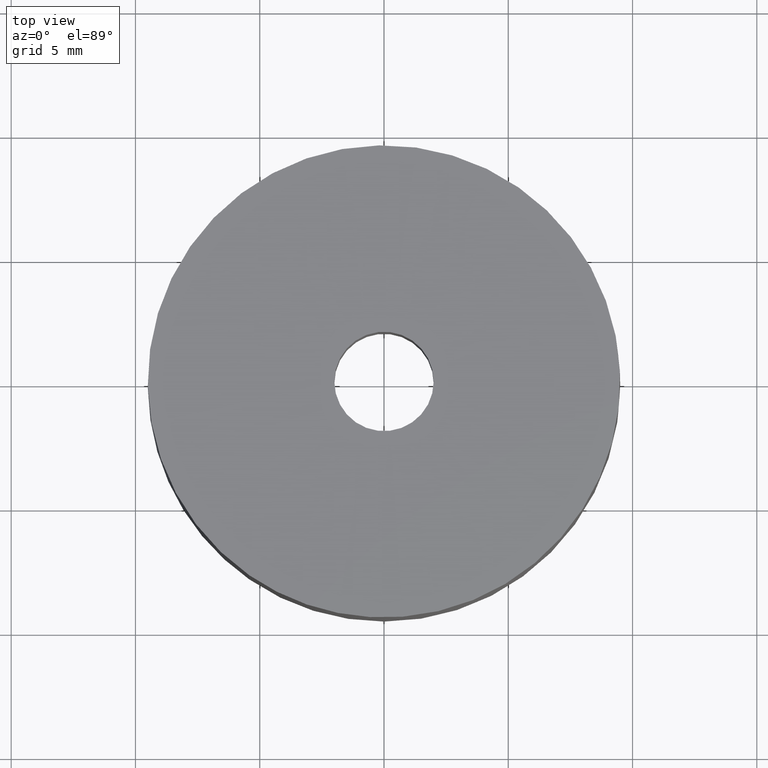
[diagram: clean part render]
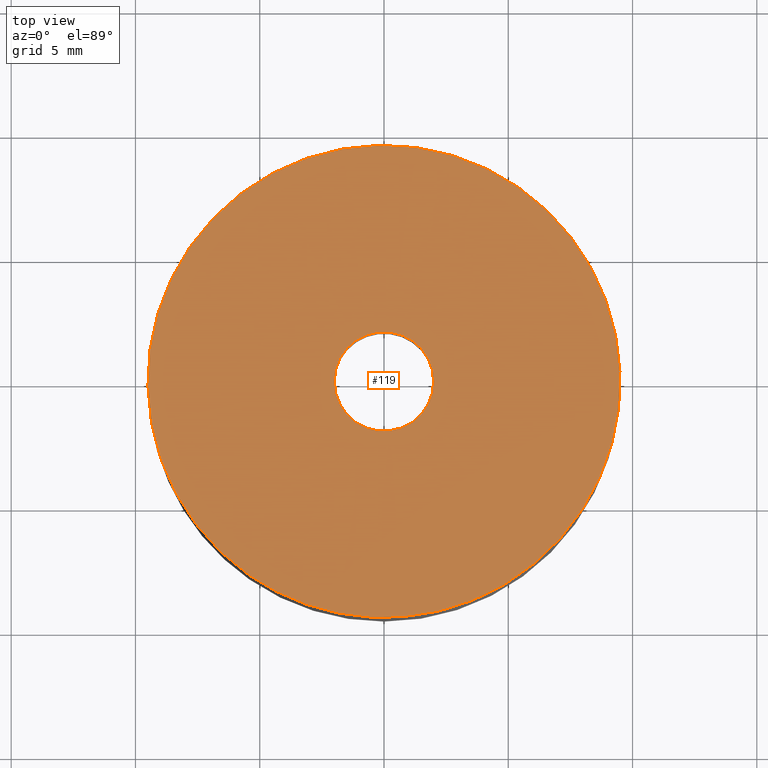
[diagram: same view with one face highlighted and labeled with its STEP entity id]
A machine part, top view. The second image highlights one B-rep face of the part: STEP entity #119.
In plain terms, the highlighted planar face has unit normal (0, 0, 1).
Its self-contained STEP definition (entity closure, byte-faithful):
#119=ADVANCED_FACE('',(#206,#207),#205,.T.);
#205=PLANE('',#379);
#206=FACE_OUTER_BOUND('',#380,.T.);
#207=FACE_BOUND('',#381,.T.);
#376=CARTESIAN_POINT('',(-1.89391557203E+001,-1.37320234655E+001,1.20000000000E+001));
#377=DIRECTION('',(0.00000000000E+000,0.00000000000E+000,1.00000000000E+000));
#378=DIRECTION('',(1.00000000000E+000,0.00000000000E+000,0.00000000000E+000));
#379=AXIS2_PLACEMENT_3D('',#376,#377,#378);
#380=EDGE_LOOP('',(#524,#525,#526));
#381=EDGE_LOOP('',(#527,#528,#529));
#524=ORIENTED_EDGE('',*,*,#624,.F.);
#525=ORIENTED_EDGE('',*,*,#625,.F.);
#526=ORIENTED_EDGE('',*,*,#626,.F.);
#527=ORIENTED_EDGE('',*,*,#627,.T.);
#528=ORIENTED_EDGE('',*,*,#628,.T.);
#529=ORIENTED_EDGE('',*,*,#629,.T.);
#624=EDGE_CURVE('',#810,#811,#812,.T.);
#625=EDGE_CURVE('',#818,#810,#819,.T.);
#626=EDGE_CURVE('',#811,#818,#825,.T.);
#627=EDGE_CURVE('',#831,#832,#833,.T.);
#628=EDGE_CURVE('',#832,#839,#840,.T.);
#629=EDGE_CURVE('',#839,#831,#846,.T.);
#810=VERTEX_POINT('',#1150);
#811=VERTEX_POINT('',#1151);
#812=CIRCLE('',#1155,9.50000000000E+000);
#818=VERTEX_POINT('',#1156);
#819=CIRCLE('',#1160,9.50000000000E+000);
#825=CIRCLE('',#1164,9.50000000000E+000);
#831=VERTEX_POINT('',#1165);
#832=VERTEX_POINT('',#1166);
#833=CIRCLE('',#1170,2.00000000000E+000);
#839=VERTEX_POINT('',#1171);
#840=CIRCLE('',#1175,2.00000000000E+000);
#846=CIRCLE('',#1179,2.00000000000E+000);
#1150=CARTESIAN_POINT('',(5.42298194808E+000,7.80008120411E+000,1.20000000000E+001));
#1151=CARTESIAN_POINT('',(7.45355962591E-001,-9.47071509914E+000,1.20000000000E+001));
#1152=CARTESIAN_POINT('',(-5.24913446043E-013,-2.26485497024E-014,1.20000000000E+001));
#1153=DIRECTION('',(2.07784528273E-015,1.74368434370E-015,-1.00000000000E+000));
#1154=DIRECTION('',(7.84585223781E-002,-9.96917378857E-001,-1.57528455486E-015));
#1155=AXIS2_PLACEMENT_3D('',#1152,#1153,#1154);
#1156=CARTESIAN_POINT('',(-5.42455823649E+000,-7.79898505826E+000,1.20000000000E+001));
#1157=CARTESIAN_POINT('',(-5.24913446043E-013,-2.26485497024E-014,1.20000000000E+001));
#1158=DIRECTION('',(2.07784528273E-015,1.74368434370E-015,-1.00000000000E+000));
#1159=DIRECTION('',(7.84585223781E-002,-9.96917378857E-001,-1.57528455486E-015));
#1160=AXIS2_PLACEMENT_3D('',#1157,#1158,#1159);
#1161=CARTESIAN_POINT('',(-5.24913446043E-013,-2.26485497024E-014,1.20000000000E+001));
#1162=DIRECTION('',(2.07784528273E-015,1.74368434370E-015,-1.00000000000E+000));
#1163=DIRECTION('',(7.84585223781E-002,-9.96917378857E-001,-1.57528455486E-015));
#1164=AXIS2_PLACEMENT_3D('',#1161,#1162,#1163);
#1165=CARTESIAN_POINT('',(-1.99999999999E+000,-2.44921272664E-016,1.20000000000E+001));
#1166=CARTESIAN_POINT('',(-2.36410144329E-001,1.98597840966E+000,1.20000000000E+001));
#1167=CARTESIAN_POINT('',(3.49453799231E-012,-5.43565192856E-013,1.20000000000E+001));
#1168=DIRECTION('',(-3.55271367881E-015,3.14018491737E-016,-1.00000000000E+000));
#1169=DIRECTION('',(-1.00000000000E+000,2.71782596428E-013,3.55271367881E-015));
#1170=AXIS2_PLACEMENT_3D('',#1167,#1168,#1169);
#1171=CARTESIAN_POINT('',(2.36066096548E-001,-1.98601933476E+000,1.20000000000E+001));
#1172=CARTESIAN_POINT('',(3.49453799231E-012,-5.43565192856E-013,1.20000000000E+001));
#1173=DIRECTION('',(-3.55271367881E-015,3.14018491737E-016,-1.00000000000E+000));
#1174=DIRECTION('',(-1.00000000000E+000,2.71782596428E-013,3.55271367881E-015));
#1175=AXIS2_PLACEMENT_3D('',#1172,#1173,#1174);
#1176=CARTESIAN_POINT('',(3.49453799231E-012,-5.43565192856E-013,1.20000000000E+001));
#1177=DIRECTION('',(-3.55271367881E-015,3.14018491737E-016,-1.00000000000E+000));
#1178=DIRECTION('',(-1.00000000000E+000,2.71782596428E-013,3.55271367881E-015));
#1179=AXIS2_PLACEMENT_3D('',#1176,#1177,#1178);